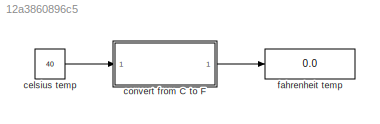
MODEL slx_12a3860896c5
KIND model
CONFIG AbsTol = auto
CONFIG EnableMultiTasking = off
CONFIG FixedStep = auto
CONFIG MaxStep = auto
CONFIG MinStep = auto
CONFIG RelTol = 1e-3
CONFIG SampleTimeConstraint = Unconstrained
CONFIG SolverName = VariableStepAuto
CONFIG StartTime = 0.0
CONFIG StopTime = 10.0
BLOCK [Constant] celsius temp
  Value = 40
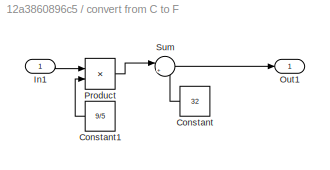
BLOCK [SubSystem] convert from C to F
  Ports = [1, 1]
  RequestExecContextInheritance = off
BLOCK [Constant] convert from C to F/Constant
  Value = 32
BLOCK [Constant] convert from C to F/Constant1
  Value = 9/5
BLOCK [Inport] convert from C to F/In1
BLOCK [Outport] convert from C to F/Out1
BLOCK [Product] convert from C to F/Product
  Ports = [2, 1]
BLOCK [Sum] convert from C to F/Sum
  Inputs = |++
  Ports = [2, 1]
BLOCK [Display] fahrenheit temp
  Decimation = 1
  Ports = [1]
LINE celsius temp:1 -> convert from C to F:1
LINE convert from C to F/Constant1:1 -> convert from C to F/Product:2
LINE convert from C to F/Constant:1 -> convert from C to F/Sum:2
LINE convert from C to F/In1:1 -> convert from C to F/Product:1
LINE convert from C to F/Product:1 -> convert from C to F/Sum:1
LINE convert from C to F/Sum:1 -> convert from C to F/Out1:1
LINE convert from C to F:1 -> fahrenheit temp:1
